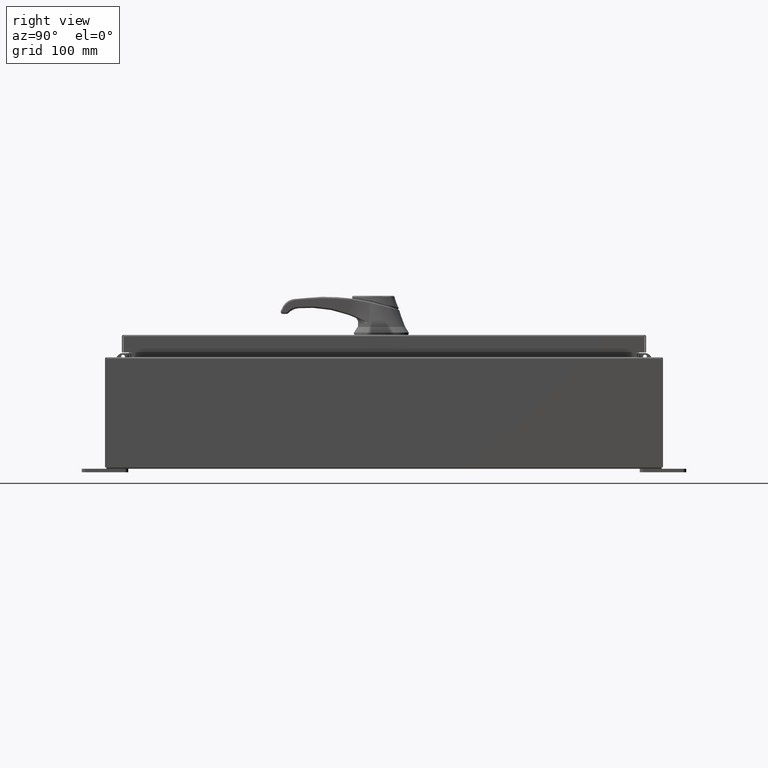
[diagram: clean part render]
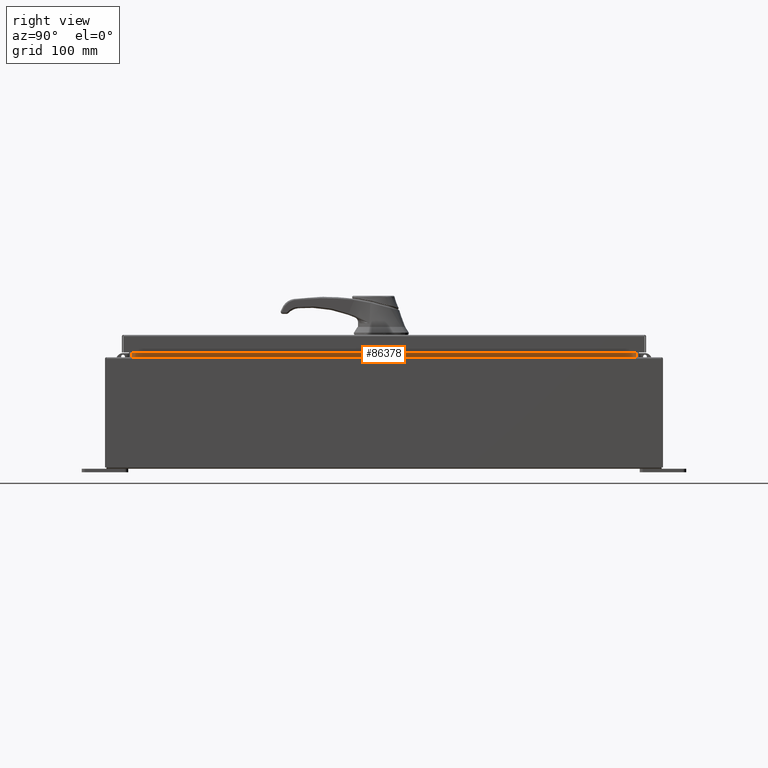
[diagram: same view with one face highlighted and labeled with its STEP entity id]
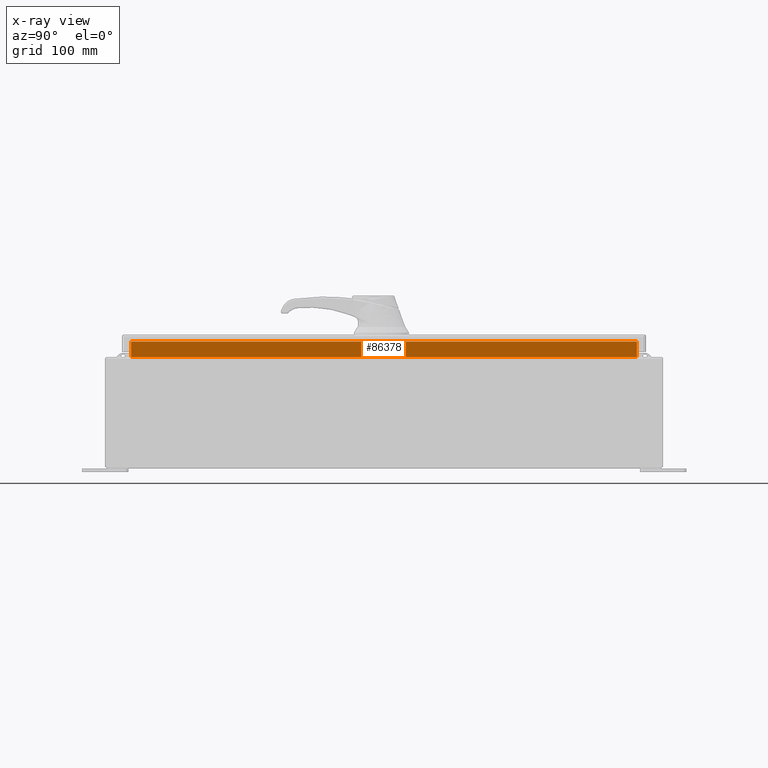
[diagram: x-ray of the same camera — body ghosted, the highlighted face saturated]
A machine part, right view. The second image highlights one B-rep face of the part: STEP entity #86378.
The next image is the same camera in x-ray: the body ghosted, the highlighted face saturated — about 0% of this face is hidden behind the body in this view.
In plain terms, the highlighted planar face has unit normal (1, 0, -0).
Its self-contained STEP definition (entity closure, byte-faithful):
#300 = ORIENTED_EDGE ( 'NONE', *, *, #99126, .F. ) ;
#7791 = ORIENTED_EDGE ( 'NONE', *, *, #47147, .F. ) ;
#8247 = CARTESIAN_POINT ( 'NONE',  ( 8.699700000000019500, 13.59375000000000900, 5.938300000000011500 ) ) ;
#8814 = VERTEX_POINT ( 'NONE', #102839 ) ;
#8906 = CARTESIAN_POINT ( 'NONE',  ( 8.699700000000019500, 13.59375000000000700, 5.938300000000010600 ) ) ;
#9547 = LINE ( 'NONE', #77633, #55367 ) ;
#11351 = FACE_OUTER_BOUND ( 'NONE', #105508, .T. ) ;
#13040 = LINE ( 'NONE', #8906, #85990 ) ;
#13231 = AXIS2_PLACEMENT_3D ( 'NONE', #42738, #106712, #51908 ) ;
#13377 = CARTESIAN_POINT ( 'NONE',  ( 8.699700000000023100, -13.59374999999999800, 6.762900000000009900 ) ) ;
#15092 = PLANE ( 'NONE',  #13231 ) ;
#19510 = LINE ( 'NONE', #54526, #89655 ) ;
#22793 = DIRECTION ( 'NONE',  ( -3.542869979895294000E-015, -0.0000000000000000000, -1.000000000000000000 ) ) ;
#24939 = ORIENTED_EDGE ( 'NONE', *, *, #80334, .F. ) ;
#29983 = VERTEX_POINT ( 'NONE', #81134 ) ;
#34894 = VERTEX_POINT ( 'NONE', #8247 ) ;
#42738 = CARTESIAN_POINT ( 'NONE',  ( 8.699699999999998200, 0.0000000000000000000, -3.082190596409509000E-014 ) ) ;
#47147 = EDGE_CURVE ( 'NONE', #29983, #51036, #19510, .T. ) ;
#51036 = VERTEX_POINT ( 'NONE', #13377 ) ;
#51254 = DIRECTION ( 'NONE',  ( 0.0000000000000000000, 1.000000000000000000, 0.0000000000000000000 ) ) ;
#51908 = DIRECTION ( 'NONE',  ( -3.542869979895294000E-015, 0.0000000000000000000, -1.000000000000000000 ) ) ;
#54526 = CARTESIAN_POINT ( 'NONE',  ( 8.699700000000023100, -13.59374999999999800, 6.850600000000010700 ) ) ;
#55367 = VECTOR ( 'NONE', #22793, 39.37007874015748100 ) ;
#60072 = CARTESIAN_POINT ( 'NONE',  ( 8.699700000000021300, -13.59374999999999800, 6.762900000000009900 ) ) ;
#61613 = ORIENTED_EDGE ( 'NONE', *, *, #80411, .F. ) ;
#73944 = LINE ( 'NONE', #60072, #82518 ) ;
#77633 = CARTESIAN_POINT ( 'NONE',  ( 8.699700000000019500, 13.59375000000000700, 5.925300000000009800 ) ) ;
#79351 = DIRECTION ( 'NONE',  ( 8.038541222736220000E-017, -1.000000000000000000, 1.205781183410432900E-016 ) ) ;
#80334 = EDGE_CURVE ( 'NONE', #8814, #34894, #9547, .T. ) ;
#80411 = EDGE_CURVE ( 'NONE', #51036, #8814, #73944, .T. ) ;
#81134 = CARTESIAN_POINT ( 'NONE',  ( 8.699700000000019500, -13.59375000000000000, 5.938300000000011500 ) ) ;
#82518 = VECTOR ( 'NONE', #51254, 39.37007874015748100 ) ;
#85990 = VECTOR ( 'NONE', #79351, 39.37007874015748100 ) ;
#86378 = ADVANCED_FACE ( 'NONE', ( #11351 ), #15092, .T. ) ;
#89655 = VECTOR ( 'NONE', #109330, 39.37007874015748100 ) ;
#99126 = EDGE_CURVE ( 'NONE', #34894, #29983, #13040, .T. ) ;
#102839 = CARTESIAN_POINT ( 'NONE',  ( 8.699700000000021300, 13.59375000000000700, 6.762900000000009900 ) ) ;
#105508 = EDGE_LOOP ( 'NONE', ( #24939, #61613, #7791, #300 ) ) ;
#106712 = DIRECTION ( 'NONE',  ( 1.000000000000000000, 0.0000000000000000000, -3.542869979895294000E-015 ) ) ;
#109330 = DIRECTION ( 'NONE',  ( 3.542869979895302300E-015, -0.0000000000000000000, 1.000000000000000000 ) ) ;